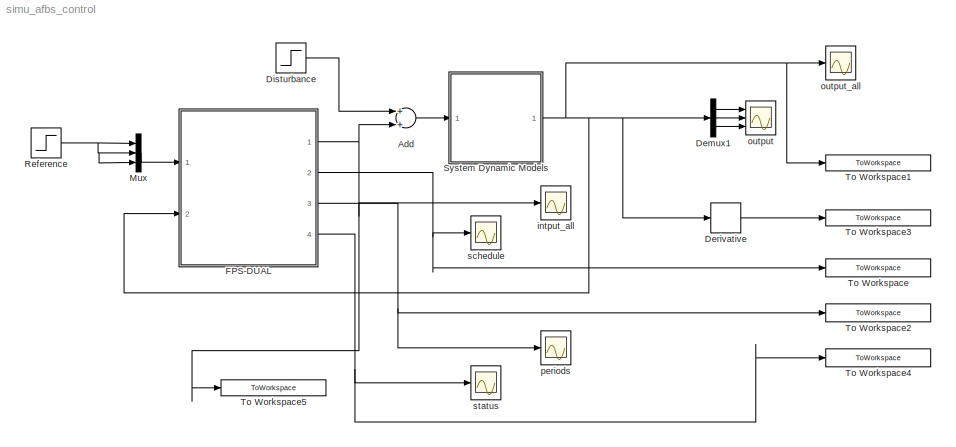
MODEL simu_afbs_control
KIND model
BLOCK [Sum] Add
  InputSameDT = off
  OutDataTypeStr = Inherit: Inherit via internal rule
  Ports = [2, 1]
  SID = 69
  SaturateOnIntegerOverflow = off
BLOCK [Demux] Demux1
  DisplayOption = bar
  Outputs = 3
  Ports = [1, 3]
  SID = 51
BLOCK [Derivative] Derivative
  SID = 62
BLOCK [Step] Disturbance
  After = 0
  SID = 67
  SampleTime = 0
  Time = 0
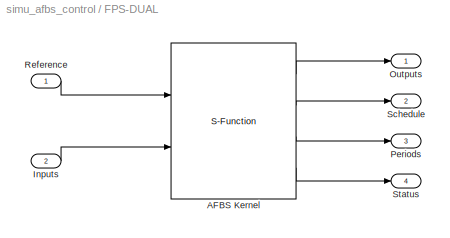
BLOCK [SubSystem] FPS-DUAL
  Ports = [2, 4]
  RequestExecContextInheritance = off
  SID = 21
BLOCK [S-Function] FPS-DUAL/AFBS Kernel
  EnableBusSupport = off
  FunctionName = kernel
  Parameters = afbs_params__,task_params__
  Ports = [2, 4]
  SFcnIsStateOwnerBlock = off
  SFunctionDeploymentMode = off
  SID = 13
BLOCK [Inport] FPS-DUAL/Inputs
  IconDisplay = Port number
  Port = 2
  SID = 22
BLOCK [Outport] FPS-DUAL/Outputs
  IconDisplay = Port number
  SID = 23
BLOCK [Outport] FPS-DUAL/Periods
  IconDisplay = Port number
  Port = 3
  SID = 58
BLOCK [Inport] FPS-DUAL/Reference
  IconDisplay = Port number
  SID = 61
BLOCK [Outport] FPS-DUAL/Schedule
  IconDisplay = Port number
  Port = 2
  SID = 38
BLOCK [Outport] FPS-DUAL/Status
  IconDisplay = Port number
  Port = 4
  SID = 71
BLOCK [Mux] Mux
  DisplayOption = bar
  Inputs = 3
  Ports = [3, 1]
  SID = 65
BLOCK [Step] Reference
  SID = 70
  SampleTime = 0
  Time = 0
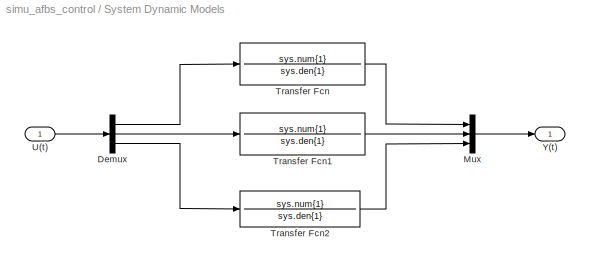
BLOCK [SubSystem] System Dynamic Models
  Ports = [1, 1]
  RequestExecContextInheritance = off
  SID = 41
BLOCK [Demux] System Dynamic Models/Demux
  DisplayOption = bar
  Outputs = 3
  Ports = [1, 3]
  SID = 50
BLOCK [Mux] System Dynamic Models/Mux
  DisplayOption = bar
  Inputs = 3
  Ports = [3, 1]
  SID = 49
BLOCK [TransferFcn] System Dynamic Models/Transfer Fcn
  Denominator = sys.den{1}
  Numerator = sys.num{1}
  SID = 29
BLOCK [TransferFcn] System Dynamic Models/Transfer Fcn1
  Denominator = sys.den{1}
  Numerator = sys.num{1}
  SID = 30
BLOCK [TransferFcn] System Dynamic Models/Transfer Fcn2
  Denominator = sys.den{1}
  Numerator = sys.num{1}
  SID = 31
BLOCK [Inport] System Dynamic Models/U(t)
  IconDisplay = Port number
  SID = 42
BLOCK [Outport] System Dynamic Models/Y(t)
  IconDisplay = Port number
  SID = 45
BLOCK [ToWorkspace] To Workspace
  FixptAsFi = on
  MaxDataPoints = inf
  Ports = [1]
  SID = 40
  SampleTime = -1
  SaveFormat = Timeseries
  VariableName = simout_schedule
BLOCK [ToWorkspace] To Workspace1
  FixptAsFi = on
  MaxDataPoints = inf
  Ports = [1]
  SID = 57
  SampleTime = -1
  SaveFormat = Timeseries
  VariableName = simout_y
BLOCK [ToWorkspace] To Workspace2
  FixptAsFi = on
  MaxDataPoints = inf
  Ports = [1]
  SID = 59
  SampleTime = -1
  SaveFormat = Timeseries
  VariableName = simout_periods
BLOCK [ToWorkspace] To Workspace3
  FixptAsFi = on
  MaxDataPoints = inf
  Ports = [1]
  SID = 63
  SampleTime = -1
  SaveFormat = Timeseries
  VariableName = simout_y_dot
BLOCK [ToWorkspace] To Workspace4
  FixptAsFi = on
  MaxDataPoints = inf
  Ports = [1]
  SID = 73
  SampleTime = -1
  SaveFormat = Timeseries
  VariableName = simout_status
BLOCK [ToWorkspace] To Workspace5
  FixptAsFi = on
  MaxDataPoints = inf
  Ports = [1]
  SID = 74
  SampleTime = -1
  SaveFormat = Timeseries
  VariableName = simout_u
BLOCK [Scope] intput_all
  Floating = off
  NumInputPorts = 1
  Ports = [1]
  SID = 55
  ScopeSpecificationString = Simulink.scopes.TimeScopeBlockCfg('CurrentConfiguration', extmgr.ConfigurationSet(extmgr.Configuration('Core','General UI',true),extmgr.Configuration('Core','Source UI',true),extmgr.Configuration('Sources','WiredSimulink',true,'DataLoggingVariableName','ScopeData4','DataLoggingSaveFormat','Array','DataLoggingDecimation','1','DataLoggingDecimateData',true),extmgr.Configuration('Visuals','Time Domai...<+2077ch>
BLOCK [Scope] output
  Floating = off
  NumInputPorts = 3
  Ports = [3]
  SID = 5
  ScopeSpecificationString = Simulink.scopes.TimeScopeBlockCfg('CurrentConfiguration', extmgr.ConfigurationSet(extmgr.Configuration('Core','General UI',true),extmgr.Configuration('Core','Source UI',true),extmgr.Configuration('Sources','WiredSimulink',true,'DataLoggingSaveFormat','Array','DataLoggingDecimation','1','DataLoggingDecimateData',true),extmgr.Configuration('Visuals','Time Domain',true,'SerializedDisplays',{struct('M...<+2908ch>
BLOCK [Scope] output_all
  Floating = off
  NumInputPorts = 1
  Ports = [1]
  SID = 52
  ScopeSpecificationString = Simulink.scopes.TimeScopeBlockCfg('CurrentConfiguration', extmgr.ConfigurationSet(extmgr.Configuration('Core','General UI',true),extmgr.Configuration('Core','Source UI',true),extmgr.Configuration('Sources','WiredSimulink',true,'DataLoggingVariableName','ScopeData3','DataLoggingSaveFormat','Array','DataLoggingDecimation','1','DataLoggingDecimateData',true),extmgr.Configuration('Visuals','Time Domai...<+1743ch>
BLOCK [Scope] periods
  Floating = off
  NumInputPorts = 1
  Ports = [1]
  SID = 60
  ScopeSpecificationString = Simulink.scopes.TimeScopeBlockCfg('CurrentConfiguration', extmgr.ConfigurationSet(extmgr.Configuration('Core','General UI',true,'FigureColor',[0.501960784313725 0.501960784313725 0.501960784313725]),extmgr.Configuration('Core','Source UI',true),extmgr.Configuration('Sources','WiredSimulink',true,'DataLoggingVariableName','ScopeData5','DataLoggingSaveFormat','Array','DataLoggingDecimation','1','Dat...<+3113ch>
BLOCK [Scope] schedule
  Floating = off
  NumInputPorts = 1
  Ports = [1]
  SID = 39
  ScopeSpecificationString = Simulink.scopes.TimeScopeBlockCfg('CurrentConfiguration', extmgr.ConfigurationSet(extmgr.Configuration('Core','General UI',true,'FigureColor',[0.501960784313725 0.501960784313725 0.501960784313725]),extmgr.Configuration('Core','Source UI',true),extmgr.Configuration('Sources','WiredSimulink',true,'DataLoggingVariableName','ScopeData2','DataLoggingSaveFormat','Array','DataLoggingDecimation','1','Dat...<+2696ch>
BLOCK [Scope] status
  Floating = off
  NumInputPorts = 1
  Ports = [1]
  SID = 72
  ScopeSpecificationString = Simulink.scopes.TimeScopeBlockCfg('CurrentConfiguration', extmgr.ConfigurationSet(extmgr.Configuration('Core','General UI',true,'FigureColor',[0.501960784313725 0.501960784313725 0.501960784313725]),extmgr.Configuration('Core','Source UI',true),extmgr.Configuration('Sources','WiredSimulink',true,'DataLoggingVariableName','ScopeData1','DataLoggingSaveFormat','Array','DataLoggingDecimation','1','Dat...<+2696ch>
LINE Add:1 -> System Dynamic Models:1
LINE Demux1:1 -> output:1
LINE Demux1:2 -> output:2
LINE Demux1:3 -> output:3
LINE Derivative:1 -> To Workspace3:1
LINE Disturbance:1 -> Add:1
LINE FPS-DUAL/AFBS Kernel:1 -> FPS-DUAL/Outputs:1
LINE FPS-DUAL/AFBS Kernel:2 -> FPS-DUAL/Schedule:1
LINE FPS-DUAL/AFBS Kernel:3 -> FPS-DUAL/Periods:1
LINE FPS-DUAL/AFBS Kernel:4 -> FPS-DUAL/Status:1
LINE FPS-DUAL/Inputs:1 -> FPS-DUAL/AFBS Kernel:2
LINE FPS-DUAL/Reference:1 -> FPS-DUAL/AFBS Kernel:1
NET FPS-DUAL:1 -> Add:2, To Workspace5:1, intput_all:1
NET FPS-DUAL:2 -> To Workspace:1, schedule:1
NET FPS-DUAL:3 -> To Workspace2:1, periods:1
NET FPS-DUAL:4 -> To Workspace4:1, status:1
LINE Mux:1 -> FPS-DUAL:1
NET Reference:1 -> Mux:1, Mux:2, Mux:3
LINE System Dynamic Models/Demux:1 -> System Dynamic Models/Transfer Fcn:1
LINE System Dynamic Models/Demux:2 -> System Dynamic Models/Transfer Fcn1:1
LINE System Dynamic Models/Demux:3 -> System Dynamic Models/Transfer Fcn2:1
LINE System Dynamic Models/Mux:1 -> System Dynamic Models/Y(t):1
LINE System Dynamic Models/Transfer Fcn1:1 -> System Dynamic Models/Mux:2
LINE System Dynamic Models/Transfer Fcn2:1 -> System Dynamic Models/Mux:3
LINE System Dynamic Models/Transfer Fcn:1 -> System Dynamic Models/Mux:1
LINE System Dynamic Models/U(t):1 -> System Dynamic Models/Demux:1
NET System Dynamic Models:1 -> Demux1:1, Derivative:1, FPS-DUAL:2, To Workspace1:1, output_all:1
note: NET lines group one-source signal fan-out (src -> all destinations, sorted); 1:1 wires keep LINE
